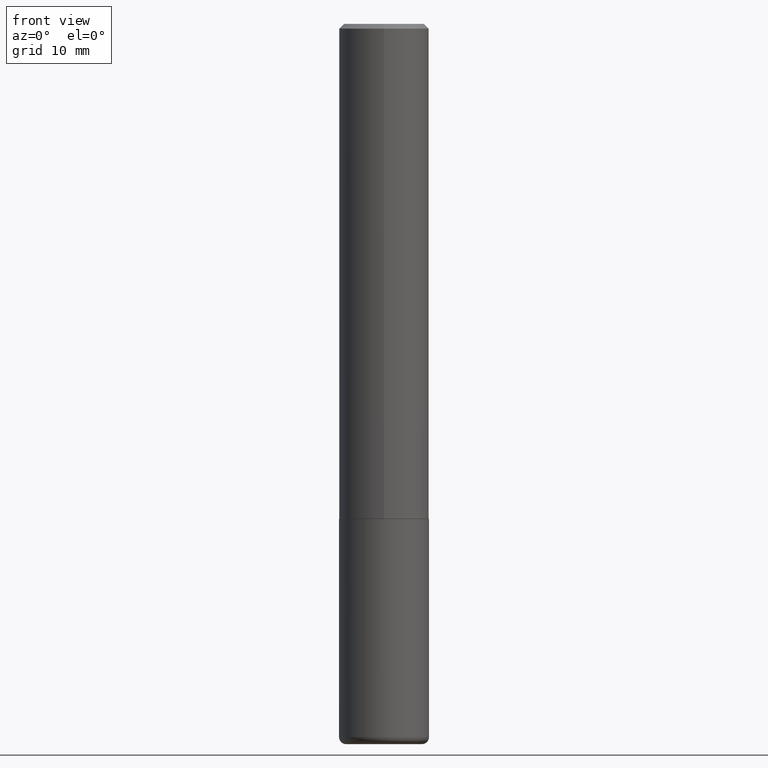
[diagram: clean part render]
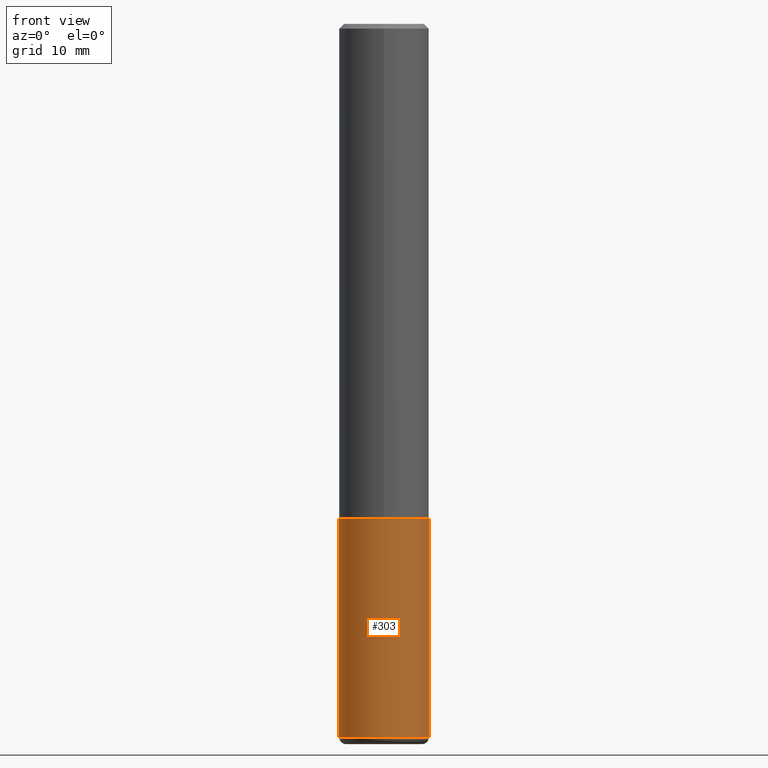
[diagram: same view with one face highlighted and labeled with its STEP entity id]
A machine part, front view. The second image highlights one B-rep face of the part: STEP entity #303.
In plain terms, the highlighted cylindrical surface (partial cylindrical patch) has radius 4.7625 mm, axis along (-0, 0, 1).
Its self-contained STEP definition (entity closure, byte-faithful):
#7 = EDGE_CURVE ( 'NONE', #211, #114, #373, .T. ) ;
#8 = CIRCLE ( 'NONE', #53, 0.1875000000000000278 ) ;
#13 = ORIENTED_EDGE ( 'NONE', *, *, #55, .F. ) ;
#14 = EDGE_CURVE ( 'NONE', #290, #372, #122, .T. ) ;
#37 = DIRECTION ( 'NONE',  ( -2.445468806185136597E-29, 3.491481338843145583E-15, 1.000000000000000000 ) ) ;
#38 = CARTESIAN_POINT ( 'NONE',  ( -0.1874999999999998335, -9.037431946813958291E-15, -2.970000000000000195 ) ) ;
#53 = AXIS2_PLACEMENT_3D ( 'NONE', #238, #345, #317 ) ;
#55 = EDGE_CURVE ( 'NONE', #114, #372, #8, .T. ) ;
#58 = AXIS2_PLACEMENT_3D ( 'NONE', #382, #95, #125 ) ;
#69 = FACE_OUTER_BOUND ( 'NONE', #81, .T. ) ;
#81 = EDGE_LOOP ( 'NONE', ( #406, #412, #183, #13 ) ) ;
#95 = DIRECTION ( 'NONE',  ( -2.445468806185136597E-29, 3.491481338843145583E-15, 1.000000000000000000 ) ) ;
#114 = VERTEX_POINT ( 'NONE', #279 ) ;
#122 = LINE ( 'NONE', #151, #336 ) ;
#125 = DIRECTION ( 'NONE',  ( 1.000000000000000000, -6.982962677686261189E-15, 0.000000000000000000 ) ) ;
#133 = CARTESIAN_POINT ( 'NONE',  ( 0.1874999999999998335, -1.167900507843031957E-14, -2.970000000000000195 ) ) ;
#151 = CARTESIAN_POINT ( 'NONE',  ( 0.1875000000000000278, -1.309305502066175008E-15, 9.142831454617381013E-30 ) ) ;
#166 = CARTESIAN_POINT ( 'NONE',  ( 0.1875000000000000278, -8.510485763430163586E-15, -2.062500000000000000 ) ) ;
#171 = VECTOR ( 'NONE', #410, 39.37007874015748143 ) ;
#173 = DIRECTION ( 'NONE',  ( 1.000000000000000000, -6.982962677686265922E-15, 4.876176775795935793E-29 ) ) ;
#179 = DIRECTION ( 'NONE',  ( -2.445468806185136877E-29, 3.491481338843145188E-15, 1.000000000000000000 ) ) ;
#183 = ORIENTED_EDGE ( 'NONE', *, *, #14, .T. ) ;
#193 = CYLINDRICAL_SURFACE ( 'NONE', #396, 0.1875000000000000278 ) ;
#196 = CIRCLE ( 'NONE', #58, 0.1875000000000000278 ) ;
#211 = VERTEX_POINT ( 'NONE', #38 ) ;
#238 = CARTESIAN_POINT ( 'NONE',  ( 5.043779412756844791E-29, -7.201180261363988578E-15, -2.062500000000000000 ) ) ;
#248 = EDGE_CURVE ( 'NONE', #211, #290, #196, .T. ) ;
#279 = CARTESIAN_POINT ( 'NONE',  ( -0.1875000000000000278, -7.453172289313877932E-15, -2.062500000000000000 ) ) ;
#290 = VERTEX_POINT ( 'NONE', #133 ) ;
#303 = ADVANCED_FACE ( 'NONE', ( #69 ), #193, .T. ) ;
#317 = DIRECTION ( 'NONE',  ( 1.000000000000000000, -6.982962677686266711E-15, 0.000000000000000000 ) ) ;
#320 = CARTESIAN_POINT ( 'NONE',  ( 0.000000000000000000, 0.000000000000000000, 0.000000000000000000 ) ) ;
#336 = VECTOR ( 'NONE', #179, 39.37007874015748143 ) ;
#342 = CARTESIAN_POINT ( 'NONE',  ( -0.1875000000000000278, 1.332267629550188046E-15, -9.223003294227947991E-30 ) ) ;
#345 = DIRECTION ( 'NONE',  ( -2.445468806185136597E-29, 3.491481338843145583E-15, 1.000000000000000000 ) ) ;
#372 = VERTEX_POINT ( 'NONE', #166 ) ;
#373 = LINE ( 'NONE', #342, #171 ) ;
#382 = CARTESIAN_POINT ( 'NONE',  ( 7.263042354369856275E-29, -1.036969957636414298E-14, -2.970000000000000195 ) ) ;
#396 = AXIS2_PLACEMENT_3D ( 'NONE', #320, #37, #173 ) ;
#406 = ORIENTED_EDGE ( 'NONE', *, *, #7, .F. ) ;
#410 = DIRECTION ( 'NONE',  ( -2.445468806185136877E-29, 3.491481338843145188E-15, 1.000000000000000000 ) ) ;
#412 = ORIENTED_EDGE ( 'NONE', *, *, #248, .T. ) ;